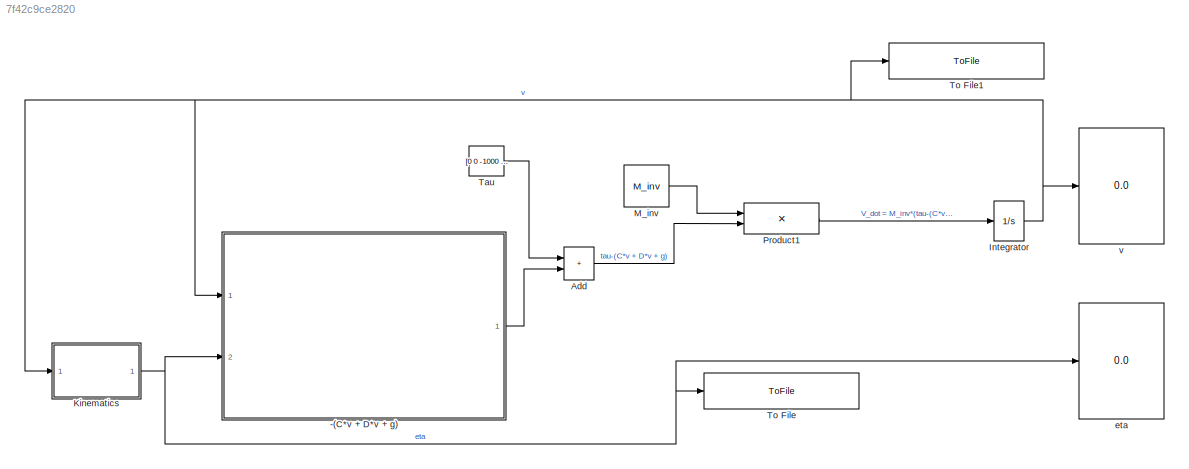
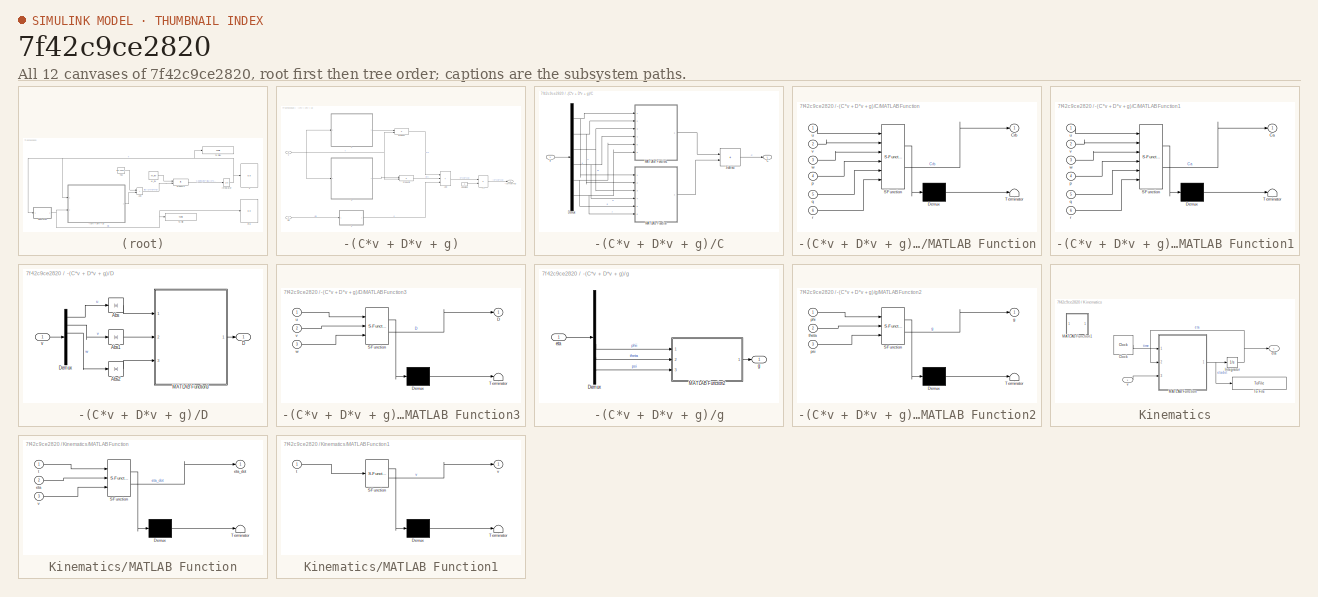
[diagram: thumbnail index - all 12 canvases of the model, root first then tree order]
MODEL slx_7f42c9ce2820
KIND model
CONFIG AbsTol = auto
CONFIG EnableMultiTasking = off
CONFIG FixedStep = auto
CONFIG MaxStep = auto
CONFIG MinStep = auto
CONFIG RelTol = 1e-3
CONFIG SampleTimeConstraint = Unconstrained
CONFIG SolverName = VariableStepAuto
CONFIG StartTime = 0.0
CONFIG StopTime = 50.0
BLOCK [SubSystem] -(C*v + D*v + g)
  Ports = [2, 1]
  RequestExecContextInheritance = off
BLOCK [Product] -(C*v + D*v + g)/-()
  Inputs = **
  Ports = [2, 1]
BLOCK [Outport] -(C*v + D*v + g)/-(C*v + D*v + g)
BLOCK [Sum] -(C*v + D*v + g)/Add
  IconShape = rectangular
  Inputs = +++
  Ports = [3, 1]
BLOCK [SubSystem] -(C*v + D*v + g)/C
  Ports = [1, 1]
  RequestExecContextInheritance = off
BLOCK [Outport] -(C*v + D*v + g)/C/C
BLOCK [Demux] -(C*v + D*v + g)/C/Demux
  Outputs = 6
  Ports = [1, 6]
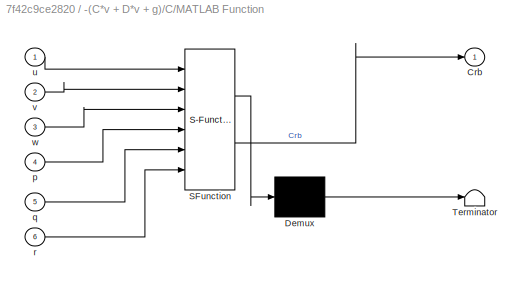
BLOCK [SubSystem] -(C*v + D*v + g)/C/MATLAB Function
  ErrorFcn = Stateflow.Translate.translate
  PermitHierarchicalResolution = ExplicitOnly
  Ports = [6, 1]
  RequestExecContextInheritance = off
  SFBlockType = MATLAB Function
  TreatAsAtomicUnit = on
BLOCK [Demux] -(C*v + D*v + g)/C/MATLAB Function/ Demux 
  Outputs = 1
  Ports = [1, 1]
BLOCK [S-Function] -(C*v + D*v + g)/C/MATLAB Function/ SFunction 
  EnableBusSupport = on
  FunctionName = sf_sfun
  PortCounts = [6 2]
  Ports = [6, 2]
  SFcnIsStateOwnerBlock = off
  SFunctionDeploymentMode = off
  Tag = Stateflow S-Function 3
BLOCK [Terminator] -(C*v + D*v + g)/C/MATLAB Function/ Terminator 
BLOCK [Outport] -(C*v + D*v + g)/C/MATLAB Function/Crb
BLOCK [Inport] -(C*v + D*v + g)/C/MATLAB Function/p
  Port = 4
BLOCK [Inport] -(C*v + D*v + g)/C/MATLAB Function/q
  Port = 5
BLOCK [Inport] -(C*v + D*v + g)/C/MATLAB Function/r
  Port = 6
BLOCK [Inport] -(C*v + D*v + g)/C/MATLAB Function/u
BLOCK [Inport] -(C*v + D*v + g)/C/MATLAB Function/v
  Port = 2
BLOCK [Inport] -(C*v + D*v + g)/C/MATLAB Function/w
  Port = 3
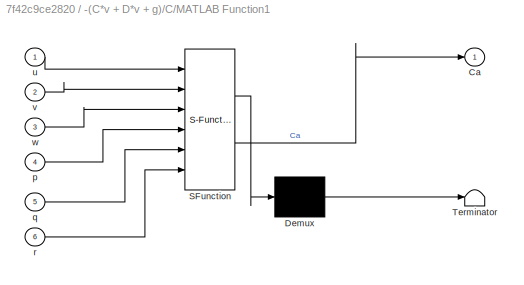
BLOCK [SubSystem] -(C*v + D*v + g)/C/MATLAB Function1
  ErrorFcn = Stateflow.Translate.translate
  PermitHierarchicalResolution = ExplicitOnly
  Ports = [6, 1]
  RequestExecContextInheritance = off
  SFBlockType = MATLAB Function
  TreatAsAtomicUnit = on
BLOCK [Demux] -(C*v + D*v + g)/C/MATLAB Function1/ Demux 
  Outputs = 1
  Ports = [1, 1]
BLOCK [S-Function] -(C*v + D*v + g)/C/MATLAB Function1/ SFunction 
  EnableBusSupport = on
  FunctionName = sf_sfun
  PortCounts = [6 2]
  Ports = [6, 2]
  SFcnIsStateOwnerBlock = off
  SFunctionDeploymentMode = off
  Tag = Stateflow S-Function 4
BLOCK [Terminator] -(C*v + D*v + g)/C/MATLAB Function1/ Terminator 
BLOCK [Outport] -(C*v + D*v + g)/C/MATLAB Function1/Ca
BLOCK [Inport] -(C*v + D*v + g)/C/MATLAB Function1/p
  Port = 4
BLOCK [Inport] -(C*v + D*v + g)/C/MATLAB Function1/q
  Port = 5
BLOCK [Inport] -(C*v + D*v + g)/C/MATLAB Function1/r
  Port = 6
BLOCK [Inport] -(C*v + D*v + g)/C/MATLAB Function1/u
BLOCK [Inport] -(C*v + D*v + g)/C/MATLAB Function1/v
  Port = 2
BLOCK [Inport] -(C*v + D*v + g)/C/MATLAB Function1/w
  Port = 3
BLOCK [Sum] -(C*v + D*v + g)/C/Subtract
  IconShape = rectangular
  Ports = [2, 1]
BLOCK [Inport] -(C*v + D*v + g)/C/v
BLOCK [Constant] -(C*v + D*v + g)/Constant
  Value = -1
BLOCK [SubSystem] -(C*v + D*v + g)/D
  Ports = [1, 1]
  RequestExecContextInheritance = off
BLOCK [Abs] -(C*v + D*v + g)/D/Abs
  SaturateOnIntegerOverflow = off
BLOCK [Abs] -(C*v + D*v + g)/D/Abs1
  SaturateOnIntegerOverflow = off
BLOCK [Abs] -(C*v + D*v + g)/D/Abs2
  SaturateOnIntegerOverflow = off
BLOCK [Outport] -(C*v + D*v + g)/D/D
BLOCK [Demux] -(C*v + D*v + g)/D/Demux
  Outputs = 6
  Ports = [1, 6]
BLOCK [SubSystem] -(C*v + D*v + g)/D/MATLAB Function3
  ErrorFcn = Stateflow.Translate.translate
  PermitHierarchicalResolution = ExplicitOnly
  Ports = [3, 1]
  RequestExecContextInheritance = off
  SFBlockType = MATLAB Function
  TreatAsAtomicUnit = on
BLOCK [Demux] -(C*v + D*v + g)/D/MATLAB Function3/ Demux 
  Outputs = 1
  Ports = [1, 1]
BLOCK [S-Function] -(C*v + D*v + g)/D/MATLAB Function3/ SFunction 
  EnableBusSupport = on
  FunctionName = sf_sfun
  PortCounts = [3 2]
  Ports = [3, 2]
  SFcnIsStateOwnerBlock = off
  SFunctionDeploymentMode = off
  Tag = Stateflow S-Function 6
BLOCK [Terminator] -(C*v + D*v + g)/D/MATLAB Function3/ Terminator 
BLOCK [Outport] -(C*v + D*v + g)/D/MATLAB Function3/D
BLOCK [Inport] -(C*v + D*v + g)/D/MATLAB Function3/u
BLOCK [Inport] -(C*v + D*v + g)/D/MATLAB Function3/v
  Port = 2
BLOCK [Inport] -(C*v + D*v + g)/D/MATLAB Function3/w
  Port = 3
BLOCK [Inport] -(C*v + D*v + g)/D/v
BLOCK [Product] -(C*v + D*v + g)/Product
  Multiplication = Matrix(*)
  Ports = [2, 1]
BLOCK [Product] -(C*v + D*v + g)/Product1
  Multiplication = Matrix(*)
  Ports = [2, 1]
BLOCK [Inport] -(C*v + D*v + g)/eta
  Port = 2
BLOCK [SubSystem] -(C*v + D*v + g)/g
  Ports = [1, 1]
  RequestExecContextInheritance = off
BLOCK [Demux] -(C*v + D*v + g)/g/Demux
  Outputs = 6
  Ports = [1, 6]
BLOCK [SubSystem] -(C*v + D*v + g)/g/MATLAB Function2
  ErrorFcn = Stateflow.Translate.translate
  PermitHierarchicalResolution = ExplicitOnly
  Ports = [3, 1]
  RequestExecContextInheritance = off
  SFBlockType = MATLAB Function
  TreatAsAtomicUnit = on
BLOCK [Demux] -(C*v + D*v + g)/g/MATLAB Function2/ Demux 
  Outputs = 1
  Ports = [1, 1]
BLOCK [S-Function] -(C*v + D*v + g)/g/MATLAB Function2/ SFunction 
  EnableBusSupport = on
  FunctionName = sf_sfun
  PortCounts = [3 2]
  Ports = [3, 2]
  SFcnIsStateOwnerBlock = off
  SFunctionDeploymentMode = off
  Tag = Stateflow S-Function 5
BLOCK [Terminator] -(C*v + D*v + g)/g/MATLAB Function2/ Terminator 
BLOCK [Outport] -(C*v + D*v + g)/g/MATLAB Function2/g
BLOCK [Inport] -(C*v + D*v + g)/g/MATLAB Function2/phi
BLOCK [Inport] -(C*v + D*v + g)/g/MATLAB Function2/psi
  Port = 3
BLOCK [Inport] -(C*v + D*v + g)/g/MATLAB Function2/theta
  Port = 2
BLOCK [Inport] -(C*v + D*v + g)/g/eta
BLOCK [Outport] -(C*v + D*v + g)/g/g
BLOCK [Inport] -(C*v + D*v + g)/v
BLOCK [Sum] Add
  IconShape = rectangular
  Ports = [2, 1]
BLOCK [Integrator] Integrator
  InitialCondition = V0
  Ports = [1, 1]
BLOCK [SubSystem] Kinematics
  Ports = [1, 1]
  RequestExecContextInheritance = off
BLOCK [Clock] Kinematics/Clock
  DisplayTime = on
BLOCK [Integrator] Kinematics/Integrator
  InitialCondition = eta_0
  Ports = [1, 1]
BLOCK [SubSystem] Kinematics/MATLAB Function
  ErrorFcn = Stateflow.Translate.translate
  PermitHierarchicalResolution = ExplicitOnly
  Ports = [3, 1]
  RequestExecContextInheritance = off
  SFBlockType = MATLAB Function
  TreatAsAtomicUnit = on
BLOCK [Demux] Kinematics/MATLAB Function/ Demux 
  Outputs = 1
  Ports = [1, 1]
BLOCK [S-Function] Kinematics/MATLAB Function/ SFunction 
  EnableBusSupport = on
  FunctionName = sf_sfun
  PortCounts = [3 2]
  Ports = [3, 2]
  SFcnIsStateOwnerBlock = off
  SFunctionDeploymentMode = off
  Tag = Stateflow S-Function 2
BLOCK [Terminator] Kinematics/MATLAB Function/ Terminator 
BLOCK [Inport] Kinematics/MATLAB Function/eta
  Port = 2
BLOCK [Outport] Kinematics/MATLAB Function/eta_dot
BLOCK [Inport] Kinematics/MATLAB Function/t
BLOCK [Inport] Kinematics/MATLAB Function/v
  Port = 3
BLOCK [SubSystem] Kinematics/MATLAB Function1
  Commented = through
  ErrorFcn = Stateflow.Translate.translate
  PermitHierarchicalResolution = ExplicitOnly
  Ports = [1, 1]
  RequestExecContextInheritance = off
  SFBlockType = MATLAB Function
  TreatAsAtomicUnit = on
BLOCK [Demux] Kinematics/MATLAB Function1/ Demux 
  Outputs = 1
  Ports = [1, 1]
BLOCK [S-Function] Kinematics/MATLAB Function1/ SFunction 
  EnableBusSupport = on
  FunctionName = sf_sfun
  PortCounts = [1 2]
  Ports = [1, 2]
  SFcnIsStateOwnerBlock = off
  SFunctionDeploymentMode = off
  Tag = Stateflow S-Function 1
BLOCK [Terminator] Kinematics/MATLAB Function1/ Terminator 
BLOCK [Inport] Kinematics/MATLAB Function1/t
BLOCK [Outport] Kinematics/MATLAB Function1/v
BLOCK [ToFile] Kinematics/To File
  Filename = etaDot_from_SL_Dyn_model.mat
  MatrixName = etaDot
  Ports = [1]
BLOCK [Outport] Kinematics/eta
BLOCK [Inport] Kinematics/v
BLOCK [Constant] M_inv
  Value = M_inv
BLOCK [Product] Product1
  Multiplication = Matrix(*)
  Ports = [2, 1]
BLOCK [Constant] Tau
  Value = [0 0 -1000 0 0 0]
BLOCK [ToFile] To File
  Filename = eta_from_SL_Dyn_model.mat
  MatrixName = eta
  Ports = [1]
BLOCK [ToFile] To File1
  Filename = v_from_SL_Dyn_model.mat
  MatrixName = v
  Ports = [1]
BLOCK [Display] eta
  Decimation = 1
  Ports = [1]
BLOCK [Display] v
  Decimation = 1
  Ports = [1]
LINE -(C*v + D*v + g)/-():1 -> -(C*v + D*v + g)/-(C*v + D*v + g):1
LINE -(C*v + D*v + g)/Add:1 -> -(C*v + D*v + g)/-():1
NET -(C*v + D*v + g)/C/Demux:1 -> -(C*v + D*v + g)/C/MATLAB Function1:1, -(C*v + D*v + g)/C/MATLAB Function:1
NET -(C*v + D*v + g)/C/Demux:2 -> -(C*v + D*v + g)/C/MATLAB Function1:2, -(C*v + D*v + g)/C/MATLAB Function:2
NET -(C*v + D*v + g)/C/Demux:3 -> -(C*v + D*v + g)/C/MATLAB Function1:3, -(C*v + D*v + g)/C/MATLAB Function:3
NET -(C*v + D*v + g)/C/Demux:4 -> -(C*v + D*v + g)/C/MATLAB Function1:4, -(C*v + D*v + g)/C/MATLAB Function:4
NET -(C*v + D*v + g)/C/Demux:5 -> -(C*v + D*v + g)/C/MATLAB Function1:5, -(C*v + D*v + g)/C/MATLAB Function:5
NET -(C*v + D*v + g)/C/Demux:6 -> -(C*v + D*v + g)/C/MATLAB Function1:6, -(C*v + D*v + g)/C/MATLAB Function:6
LINE -(C*v + D*v + g)/C/MATLAB Function1:1 -> -(C*v + D*v + g)/C/Subtract:1
LINE -(C*v + D*v + g)/C/MATLAB Function:1 -> -(C*v + D*v + g)/C/Subtract:2
LINE -(C*v + D*v + g)/C/Subtract:1 -> -(C*v + D*v + g)/C/C:1
LINE -(C*v + D*v + g)/C/v:1 -> -(C*v + D*v + g)/C/Demux:1
LINE -(C*v + D*v + g)/C:1 -> -(C*v + D*v + g)/Product:1
LINE -(C*v + D*v + g)/Constant:1 -> -(C*v + D*v + g)/-():2
LINE -(C*v + D*v + g)/D/Abs1:1 -> -(C*v + D*v + g)/D/MATLAB Function3:2
LINE -(C*v + D*v + g)/D/Abs2:1 -> -(C*v + D*v + g)/D/MATLAB Function3:3
LINE -(C*v + D*v + g)/D/Abs:1 -> -(C*v + D*v + g)/D/MATLAB Function3:1
LINE -(C*v + D*v + g)/D/Demux:1 -> -(C*v + D*v + g)/D/Abs:1
LINE -(C*v + D*v + g)/D/Demux:2 -> -(C*v + D*v + g)/D/Abs1:1
LINE -(C*v + D*v + g)/D/Demux:3 -> -(C*v + D*v + g)/D/Abs2:1
LINE -(C*v + D*v + g)/D/MATLAB Function3:1 -> -(C*v + D*v + g)/D/D:1
LINE -(C*v + D*v + g)/D/v:1 -> -(C*v + D*v + g)/D/Demux:1
LINE -(C*v + D*v + g)/D:1 -> -(C*v + D*v + g)/Product1:1
LINE -(C*v + D*v + g)/Product1:1 -> -(C*v + D*v + g)/Add:2
LINE -(C*v + D*v + g)/Product:1 -> -(C*v + D*v + g)/Add:1
LINE -(C*v + D*v + g)/eta:1 -> -(C*v + D*v + g)/g:1
LINE -(C*v + D*v + g)/g/Demux:4 -> -(C*v + D*v + g)/g/MATLAB Function2:1
LINE -(C*v + D*v + g)/g/Demux:5 -> -(C*v + D*v + g)/g/MATLAB Function2:2
LINE -(C*v + D*v + g)/g/Demux:6 -> -(C*v + D*v + g)/g/MATLAB Function2:3
LINE -(C*v + D*v + g)/g/MATLAB Function2:1 -> -(C*v + D*v + g)/g/g:1
LINE -(C*v + D*v + g)/g/eta:1 -> -(C*v + D*v + g)/g/Demux:1
LINE -(C*v + D*v + g)/g:1 -> -(C*v + D*v + g)/Add:3
NET -(C*v + D*v + g)/v:1 -> -(C*v + D*v + g)/C:1, -(C*v + D*v + g)/D:1, -(C*v + D*v + g)/Product1:2, -(C*v + D*v + g)/Product:2
LINE -(C*v + D*v + g):1 -> Add:2
LINE Add:1 -> Product1:2
NET Integrator:1 -> -(C*v + D*v + g):1, Kinematics:1, To File1:1, v:1
LINE Kinematics/Clock:1 -> Kinematics/MATLAB Function:1
NET Kinematics/Integrator:1 -> Kinematics/MATLAB Function:2, Kinematics/eta:1
NET Kinematics/MATLAB Function:1 -> Kinematics/Integrator:1, Kinematics/To File:1
LINE Kinematics/v:1 -> Kinematics/MATLAB Function:3
NET Kinematics:1 -> -(C*v + D*v + g):2, To File:1, eta:1
LINE M_inv:1 -> Product1:1
LINE Product1:1 -> Integrator:1
LINE Tau:1 -> Add:1
note: NET lines group one-source signal fan-out (src -> all destinations, sorted); 1:1 wires keep LINE
CHART Kinematics/MATLAB Function1 states=1 transitions=1
  STATE_LABEL 'eML_blk_kernel()'
  STATE_LABEL 'SCRIPT:\nfunction v = f_v(t)\nv = [0.5\n     0\n     0\n     2*pi/10\n     0\n     0];\nend'
CHART Kinematics/MATLAB Function states=1 transitions=1
  STATE_LABEL 'eML_blk_kernel()'
  STATE_LABEL 'SCRIPT:\nfunction eta_dot = V_P (t,eta,v)\n\nphi = eta(4);\ntheta = eta(5);\npsi = eta(6);\n\neta_dot = zeros(6,1);\n\nCpsi = [cos(psi) -sin(psi) 0\n        sin(psi)  cos(psi) 0\n        0          0       1];\n\nCtheta = [cos(theta)   0   sin(theta)\n           0           1      0   \n         -sin(theta)   0   cos(theta)];\n\nCphi = [1    0         0\n        0 cos(phi) -sin(phi)\n        0 sin(phi) cos(phi)];\n\nJ...<+229ch>'
CHART -(C*v + D*v + g)/C/MATLAB Function states=1 transitions=1
  STATE_LABEL 'eML_blk_kernel()'
  STATE_LABEL 'SCRIPT:\nfunction Crb = Mat_gen(u,v,w,p,q,r)\n\n\nCrb = [     0                  0           0            0           32.16*q + 1462*w       32.16*r - 1462*v\n            0                  0           0         -1462*w          -32.16*p                  1462*u\n            0                  0           0          1462*v           -1462*u                 -32.16*p\n            0                1462*w    ...<+280ch>'
CHART -(C*v + D*v + g)/C/MATLAB Function1 states=1 transitions=1
  STATE_LABEL 'eML_blk_kernel()'
  STATE_LABEL 'SCRIPT:\n\nfunction Ca= Mat_gen(u,v,w,p,q,r)\n\n\nCa = [            0                        0                              0                        0            7040.36*w - 277.20*q      -1049.21*v + 996.04*r\n                  0                        0                              0             -7040.36*w + 277.20*q             0                       323.10*u\n                  0                     ...<+592ch>'
CHART -(C*v + D*v + g)/g/MATLAB Function2 states=1 transitions=1
  STATE_LABEL 'eML_blk_kernel()'
  STATE_LABEL 'SCRIPT:\nfunction g = fcn(phi,theta,psi)\n\ng = [           -49*sin(theta)\n            49*cos(theta)*sin(phi)\n            49*cos(theta)*cos(phi)\n          215.87*cos(theta)*sin(phi)\n    215.87*sin(theta) - 1.1*cos(theta)*cos(phi)\n           1.1*cos(theta)*sin(phi)              ];\n'
CHART -(C*v + D*v + g)/D/MATLAB Function3 states=1 transitions=1
  STATE_LABEL 'eML_blk_kernel()'
  STATE_LABEL 'SCRIPT:\nfunction D = Mat_gen(u,v,w)\n\n\nD =   [ 0.25*ro*pi*rad^2*cdx*u^2                  0                                 0\n\n                  0                    0.5*ro*2*rad*len*cdy*v^2                     0\n\n                  0                               0                                 0 ];'
CHART  states=0 transitions=0
CHART  states=0 transitions=0
CHART  states=0 transitions=0
CHART  states=0 transitions=0
CHART  states=0 transitions=0
CHART  states=0 transitions=0
